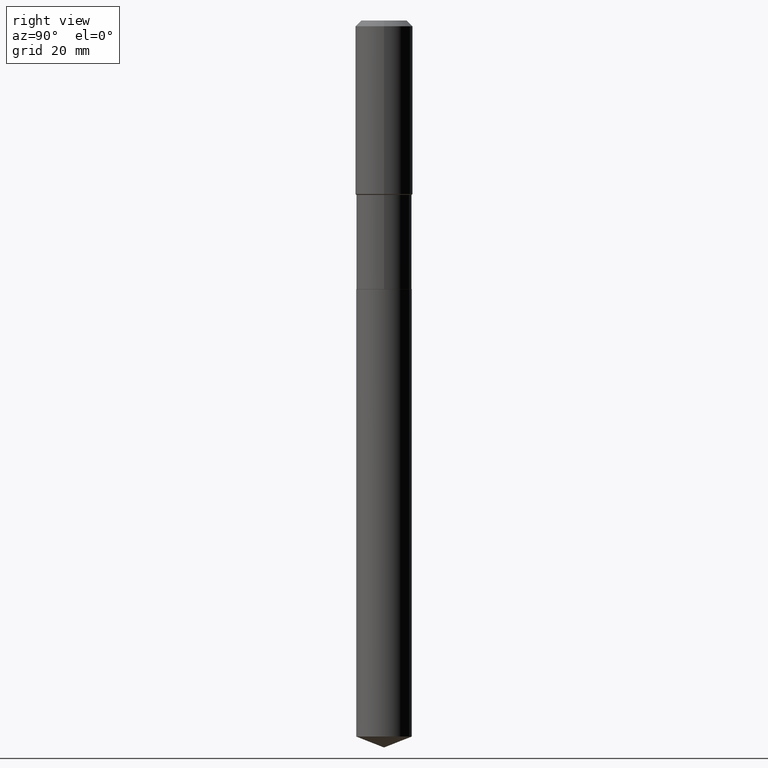
[diagram: clean part render]
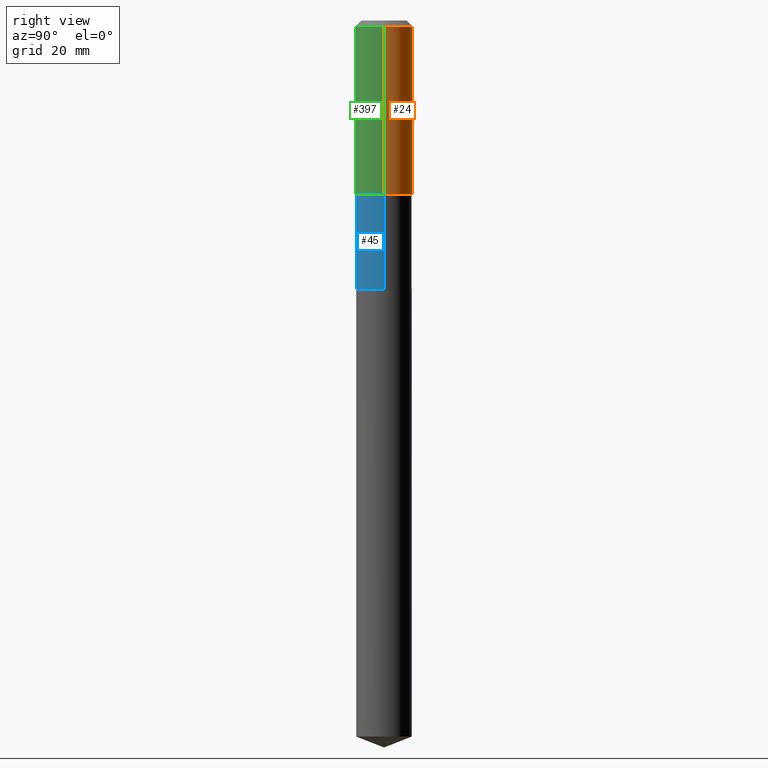
[diagram: same view with three faces highlighted in distinct colors, each labeled with its STEP entity id]
A machine part, right view with three faces highlighted in distinct colors.
Their STEP definitions:

[orange] entity #24 — the highlighted cylindrical surface (edge-blend (fillet) strip) has radius 7.9997 mm, axis along (-0, 0, 1).
#8 = CARTESIAN_POINT ( 'NONE',  ( 0.000000000000000000, 0.000000000000000000, 0.000000000000000000 ) ) ;
#15 = EDGE_CURVE ( 'NONE', #431, #48, #161, .T. ) ;
#20 = VERTEX_POINT ( 'NONE', #128 ) ;
#22 = VECTOR ( 'NONE', #478, 39.37007874015748143 ) ;
#24 = ADVANCED_FACE ( 'NONE', ( #348 ), #275, .T. ) ;
#35 = CARTESIAN_POINT ( 'NONE',  ( 0.3149500000000002298, -8.855967841908689792E-15, -1.906549999999999967 ) ) ;
#48 = VERTEX_POINT ( 'NONE', #251 ) ;
#83 = ORIENTED_EDGE ( 'NONE', *, *, #303, .T. ) ;
#85 = CARTESIAN_POINT ( 'NONE',  ( 1.540400801016026329E-30, -2.199284095337310135E-16, -0.06299000000000036514 ) ) ;
#92 = DIRECTION ( 'NONE',  ( -2.445468806185136597E-29, 3.491481338843145583E-15, 1.000000000000000000 ) ) ;
#106 = CARTESIAN_POINT ( 'NONE',  ( -0.3149500000000002298, -4.418829400294962358E-15, -1.906549999999999967 ) ) ;
#128 = CARTESIAN_POINT ( 'NONE',  ( -0.3149500000000000077, -1.200451731776128114E-15, -0.06299000000000036514 ) ) ;
#142 = AXIS2_PLACEMENT_3D ( 'NONE', #166, #200, #408 ) ;
#157 = DIRECTION ( 'NONE',  ( -2.445468806185136597E-29, 3.491481338843145583E-15, 1.000000000000000000 ) ) ;
#161 = LINE ( 'NONE', #467, #329 ) ;
#165 = CIRCLE ( 'NONE', #142, 0.3149500000000002298 ) ;
#166 = CARTESIAN_POINT ( 'NONE',  ( 4.662408552432271870E-29, -6.656683746571398343E-15, -1.906549999999999967 ) ) ;
#175 = EDGE_CURVE ( 'NONE', #48, #20, #453, .T. ) ;
#190 = DIRECTION ( 'NONE',  ( -2.445468806185136877E-29, 3.491481338843145188E-15, 1.000000000000000000 ) ) ;
#200 = DIRECTION ( 'NONE',  ( -2.445468806185136597E-29, 3.491481338843145583E-15, 1.000000000000000000 ) ) ;
#216 = EDGE_CURVE ( 'NONE', #241, #20, #286, .T. ) ;
#223 = AXIS2_PLACEMENT_3D ( 'NONE', #85, #92, #345 ) ;
#230 = EDGE_LOOP ( 'NONE', ( #83, #470, #374, #435 ) ) ;
#241 = VERTEX_POINT ( 'NONE', #106 ) ;
#251 = CARTESIAN_POINT ( 'NONE',  ( 0.3149500000000000077, -2.419212504871020909E-15, -0.06299000000000036514 ) ) ;
#268 = DIRECTION ( 'NONE',  ( 1.000000000000000000, -6.982962677686265922E-15, 4.876176775795935232E-29 ) ) ;
#275 = CYLINDRICAL_SURFACE ( 'NONE', #291, 0.3149500000000001743 ) ;
#286 = LINE ( 'NONE', #289, #22 ) ;
#289 = CARTESIAN_POINT ( 'NONE',  ( -0.3149500000000001743, 2.237854346276436774E-15, -1.549218606675783237E-29 ) ) ;
#291 = AXIS2_PLACEMENT_3D ( 'NONE', #8, #157, #268 ) ;
#303 = EDGE_CURVE ( 'NONE', #431, #241, #165, .T. ) ;
#329 = VECTOR ( 'NONE', #190, 39.37007874015748143 ) ;
#345 = DIRECTION ( 'NONE',  ( 1.000000000000000000, -6.982962677686266711E-15, 0.000000000000000000 ) ) ;
#348 = FACE_OUTER_BOUND ( 'NONE', #230, .T. ) ;
#374 = ORIENTED_EDGE ( 'NONE', *, *, #175, .F. ) ;
#408 = DIRECTION ( 'NONE',  ( 1.000000000000000000, -6.982962677686268288E-15, 0.000000000000000000 ) ) ;
#431 = VERTEX_POINT ( 'NONE', #35 ) ;
#435 = ORIENTED_EDGE ( 'NONE', *, *, #15, .F. ) ;
#453 = CIRCLE ( 'NONE', #223, 0.3149500000000000077 ) ;
#467 = CARTESIAN_POINT ( 'NONE',  ( 0.3149500000000001743, -2.199284095337290660E-15, 1.535751875536930690E-29 ) ) ;
#470 = ORIENTED_EDGE ( 'NONE', *, *, #216, .T. ) ;
#478 = DIRECTION ( 'NONE',  ( -2.445468806185136877E-29, 3.491481338843145188E-15, 1.000000000000000000 ) ) ;

[blue] entity #45 — the highlighted cylindrical surface (edge-blend (fillet) strip) has radius 7.7495 mm, axis along (-0, 0, 1).
#1 = CIRCLE ( 'NONE', #402, 0.3050999999999998158 ) ;
#3 = ORIENTED_EDGE ( 'NONE', *, *, #69, .T. ) ;
#32 = CARTESIAN_POINT ( 'NONE',  ( 7.219513009619761960E-29, -1.030755120853273430E-14, -2.952200000000000379 ) ) ;
#45 = ADVANCED_FACE ( 'NONE', ( #103 ), #248, .T. ) ;
#49 = EDGE_CURVE ( 'NONE', #218, #310, #1, .T. ) ;
#68 = CARTESIAN_POINT ( 'NONE',  ( 0.3050999999999998158, -8.821576750721085777E-15, -1.916400000000000325 ) ) ;
#69 = EDGE_CURVE ( 'NONE', #346, #310, #107, .T. ) ;
#72 = DIRECTION ( 'NONE',  ( 1.000000000000000000, -6.982962677686265133E-15, 4.876176775795935793E-29 ) ) ;
#80 = VECTOR ( 'NONE', #363, 39.37007874015748143 ) ;
#93 = ORIENTED_EDGE ( 'NONE', *, *, #49, .F. ) ;
#95 = ORIENTED_EDGE ( 'NONE', *, *, #290, .F. ) ;
#103 = FACE_OUTER_BOUND ( 'NONE', #159, .T. ) ;
#107 = LINE ( 'NONE', #243, #409 ) ;
#135 = CARTESIAN_POINT ( 'NONE',  ( -0.3050999999999999268, 2.167865886804065147E-15, -1.500767096036771338E-29 ) ) ;
#139 = DIRECTION ( 'NONE',  ( -2.445468806185136597E-29, 3.491481338843145583E-15, 1.000000000000000000 ) ) ;
#159 = EDGE_LOOP ( 'NONE', ( #95, #272, #3, #93 ) ) ;
#172 = LINE ( 'NONE', #135, #80 ) ;
#218 = VERTEX_POINT ( 'NONE', #326 ) ;
#243 = CARTESIAN_POINT ( 'NONE',  ( 0.3050999999999999268, -2.130501912962079080E-15, 1.487721534295339594E-29 ) ) ;
#248 = CYLINDRICAL_SURFACE ( 'NONE', #309, 0.3050999999999999268 ) ;
#250 = DIRECTION ( 'NONE',  ( 1.000000000000000000, -6.982962677686268288E-15, 0.000000000000000000 ) ) ;
#253 = DIRECTION ( 'NONE',  ( -2.445468806185136877E-29, 3.491481338843145188E-15, 1.000000000000000000 ) ) ;
#263 = EDGE_CURVE ( 'NONE', #306, #346, #410, .T. ) ;
#272 = ORIENTED_EDGE ( 'NONE', *, *, #263, .T. ) ;
#290 = EDGE_CURVE ( 'NONE', #306, #218, #172, .T. ) ;
#293 = AXIS2_PLACEMENT_3D ( 'NONE', #32, #367, #250 ) ;
#306 = VERTEX_POINT ( 'NONE', #475 ) ;
#309 = AXIS2_PLACEMENT_3D ( 'NONE', #481, #366, #72 ) ;
#310 = VERTEX_POINT ( 'NONE', #68 ) ;
#321 = CARTESIAN_POINT ( 'NONE',  ( 0.3050999999999999823, -1.243805312149481457E-14, -2.952200000000000379 ) ) ;
#326 = CARTESIAN_POINT ( 'NONE',  ( -0.3050999999999998158, -6.331447136341804760E-15, -1.916400000000000325 ) ) ;
#327 = CARTESIAN_POINT ( 'NONE',  ( 4.686496420173196360E-29, -6.691074837759005513E-15, -1.916400000000000325 ) ) ;
#346 = VERTEX_POINT ( 'NONE', #321 ) ;
#363 = DIRECTION ( 'NONE',  ( -2.445468806185136877E-29, 3.491481338843145188E-15, 1.000000000000000000 ) ) ;
#366 = DIRECTION ( 'NONE',  ( -2.445468806185136597E-29, 3.491481338843145583E-15, 1.000000000000000000 ) ) ;
#367 = DIRECTION ( 'NONE',  ( -2.445468806185136597E-29, 3.491481338843145583E-15, 1.000000000000000000 ) ) ;
#402 = AXIS2_PLACEMENT_3D ( 'NONE', #327, #139, #445 ) ;
#409 = VECTOR ( 'NONE', #253, 39.37007874015748143 ) ;
#410 = CIRCLE ( 'NONE', #293, 0.3050999999999999823 ) ;
#445 = DIRECTION ( 'NONE',  ( 1.000000000000000000, -6.982962677686269077E-15, 0.000000000000000000 ) ) ;
#475 = CARTESIAN_POINT ( 'NONE',  ( -0.3050999999999999823, -6.331447136341803971E-15, -2.952200000000000379 ) ) ;
#481 = CARTESIAN_POINT ( 'NONE',  ( 0.000000000000000000, 0.000000000000000000, 0.000000000000000000 ) ) ;

[green] entity #397 — the highlighted cylindrical surface (edge-blend (fillet) strip) has radius 7.9997 mm, axis along (-0, 0, 1).
#15 = EDGE_CURVE ( 'NONE', #431, #48, #161, .T. ) ;
#20 = VERTEX_POINT ( 'NONE', #128 ) ;
#22 = VECTOR ( 'NONE', #478, 39.37007874015748143 ) ;
#25 = FACE_OUTER_BOUND ( 'NONE', #126, .T. ) ;
#35 = CARTESIAN_POINT ( 'NONE',  ( 0.3149500000000002298, -8.855967841908689792E-15, -1.906549999999999967 ) ) ;
#48 = VERTEX_POINT ( 'NONE', #251 ) ;
#63 = ORIENTED_EDGE ( 'NONE', *, *, #312, .T. ) ;
#81 = CARTESIAN_POINT ( 'NONE',  ( 0.000000000000000000, 0.000000000000000000, 0.000000000000000000 ) ) ;
#91 = EDGE_CURVE ( 'NONE', #20, #48, #113, .T. ) ;
#106 = CARTESIAN_POINT ( 'NONE',  ( -0.3149500000000002298, -4.418829400294962358E-15, -1.906549999999999967 ) ) ;
#113 = CIRCLE ( 'NONE', #222, 0.3149500000000000077 ) ;
#126 = EDGE_LOOP ( 'NONE', ( #304, #63, #219, #438 ) ) ;
#128 = CARTESIAN_POINT ( 'NONE',  ( -0.3149500000000000077, -1.200451731776128114E-15, -0.06299000000000036514 ) ) ;
#161 = LINE ( 'NONE', #467, #329 ) ;
#177 = CYLINDRICAL_SURFACE ( 'NONE', #260, 0.3149500000000001743 ) ;
#190 = DIRECTION ( 'NONE',  ( -2.445468806185136877E-29, 3.491481338843145188E-15, 1.000000000000000000 ) ) ;
#194 = CIRCLE ( 'NONE', #350, 0.3149500000000002298 ) ;
#204 = DIRECTION ( 'NONE',  ( 1.000000000000000000, -6.982962677686266711E-15, 0.000000000000000000 ) ) ;
#214 = DIRECTION ( 'NONE',  ( -2.445468806185136597E-29, 3.491481338843145583E-15, 1.000000000000000000 ) ) ;
#216 = EDGE_CURVE ( 'NONE', #241, #20, #286, .T. ) ;
#219 = ORIENTED_EDGE ( 'NONE', *, *, #15, .T. ) ;
#222 = AXIS2_PLACEMENT_3D ( 'NONE', #401, #333, #204 ) ;
#240 = DIRECTION ( 'NONE',  ( -2.445468806185136597E-29, 3.491481338843145583E-15, 1.000000000000000000 ) ) ;
#241 = VERTEX_POINT ( 'NONE', #106 ) ;
#242 = CARTESIAN_POINT ( 'NONE',  ( 4.662408552432271870E-29, -6.656683746571398343E-15, -1.906549999999999967 ) ) ;
#251 = CARTESIAN_POINT ( 'NONE',  ( 0.3149500000000000077, -2.419212504871020909E-15, -0.06299000000000036514 ) ) ;
#254 = DIRECTION ( 'NONE',  ( 1.000000000000000000, -6.982962677686265922E-15, 4.876176775795935232E-29 ) ) ;
#260 = AXIS2_PLACEMENT_3D ( 'NONE', #81, #214, #254 ) ;
#286 = LINE ( 'NONE', #289, #22 ) ;
#289 = CARTESIAN_POINT ( 'NONE',  ( -0.3149500000000001743, 2.237854346276436774E-15, -1.549218606675783237E-29 ) ) ;
#304 = ORIENTED_EDGE ( 'NONE', *, *, #216, .F. ) ;
#312 = EDGE_CURVE ( 'NONE', #241, #431, #194, .T. ) ;
#329 = VECTOR ( 'NONE', #190, 39.37007874015748143 ) ;
#333 = DIRECTION ( 'NONE',  ( -2.445468806185136597E-29, 3.491481338843145583E-15, 1.000000000000000000 ) ) ;
#350 = AXIS2_PLACEMENT_3D ( 'NONE', #242, #240, #480 ) ;
#397 = ADVANCED_FACE ( 'NONE', ( #25 ), #177, .T. ) ;
#401 = CARTESIAN_POINT ( 'NONE',  ( 1.540400801016026329E-30, -2.199284095337310135E-16, -0.06299000000000036514 ) ) ;
#431 = VERTEX_POINT ( 'NONE', #35 ) ;
#438 = ORIENTED_EDGE ( 'NONE', *, *, #91, .F. ) ;
#467 = CARTESIAN_POINT ( 'NONE',  ( 0.3149500000000001743, -2.199284095337290660E-15, 1.535751875536930690E-29 ) ) ;
#478 = DIRECTION ( 'NONE',  ( -2.445468806185136877E-29, 3.491481338843145188E-15, 1.000000000000000000 ) ) ;
#480 = DIRECTION ( 'NONE',  ( 1.000000000000000000, -6.982962677686268288E-15, 0.000000000000000000 ) ) ;